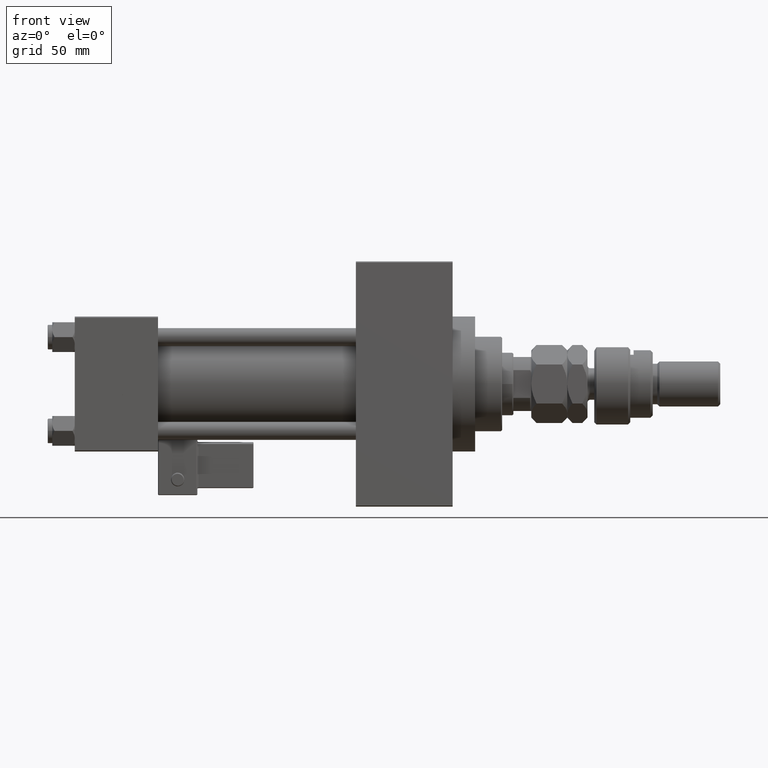
[diagram: clean part render]
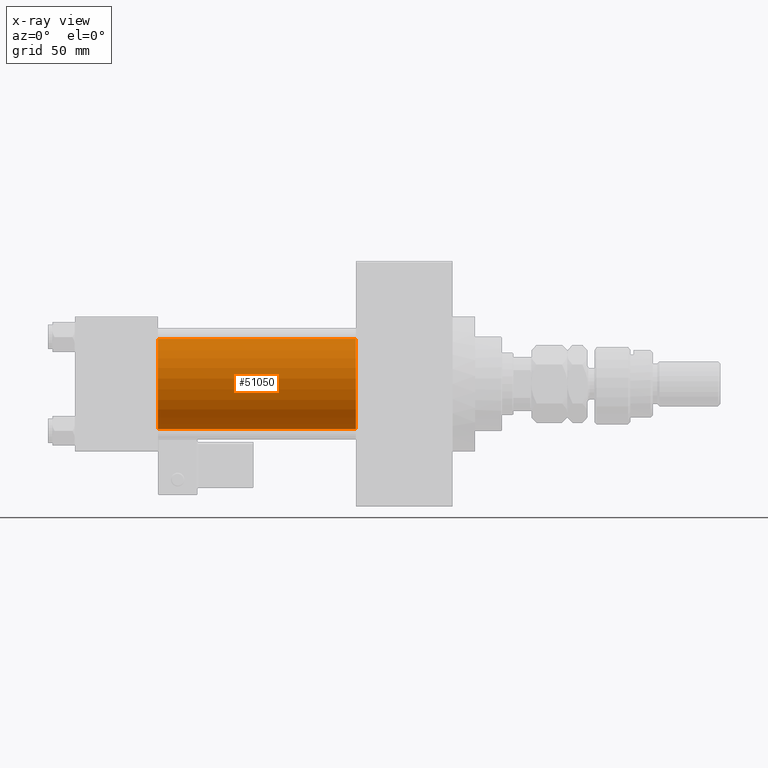
[diagram: x-ray — body ghosted, one internal face saturated and labeled with its STEP entity id]
A machine part, front view, then the same camera in x-ray: the body is ghosted and one INTERNAL B-rep face — a face not visible from any outside direction — is saturated and labeled: STEP entity #51050.
In plain terms, the highlighted cylindrical surface (partial cylindrical patch) has radius 20 mm, axis along (-1, -0, -0).
Its self-contained STEP definition (entity closure, byte-faithful):
#116 = VECTOR ( 'NONE', #9829, 1000.000000000000000 ) ;
#3916 = DIRECTION ( 'NONE',  ( 0.000000000000000000, 0.000000000000000000, -1.000000000000000000 ) ) ;
#4803 = CARTESIAN_POINT ( 'NONE',  ( 125.0000000000000000, -2.602085213965210642E-15, 0.000000000000000000 ) ) ;
#6578 = DIRECTION ( 'NONE',  ( 0.000000000000000000, 0.000000000000000000, -1.000000000000000000 ) ) ;
#9214 = EDGE_CURVE ( 'NONE', #22665, #41005, #18373, .T. ) ;
#9321 = VECTOR ( 'NONE', #18096, 1000.000000000000000 ) ;
#9829 = DIRECTION ( 'NONE',  ( -1.000000000000000000, -0.000000000000000000, -0.000000000000000000 ) ) ;
#10369 = AXIS2_PLACEMENT_3D ( 'NONE', #12200, #29048, #3916 ) ;
#10882 = ORIENTED_EDGE ( 'NONE', *, *, #26385, .F. ) ;
#11591 = VERTEX_POINT ( 'NONE', #46177 ) ;
#12200 = CARTESIAN_POINT ( 'NONE',  ( 125.0000000000000000, -2.602085213965210642E-15, 0.000000000000000000 ) ) ;
#13152 = CARTESIAN_POINT ( 'NONE',  ( 125.0000000000000000, -2.602085213965210642E-15, 20.00000000000000000 ) ) ;
#14852 = CARTESIAN_POINT ( 'NONE',  ( 37.00000000000000000, -2.602085213965210642E-15, 0.000000000000000000 ) ) ;
#16702 = FACE_OUTER_BOUND ( 'NONE', #27086, .T. ) ;
#18096 = DIRECTION ( 'NONE',  ( -1.000000000000000000, -0.000000000000000000, -0.000000000000000000 ) ) ;
#18373 = LINE ( 'NONE', #43715, #9321 ) ;
#19370 = ORIENTED_EDGE ( 'NONE', *, *, #26188, .F. ) ;
#21658 = DIRECTION ( 'NONE',  ( 0.000000000000000000, 0.000000000000000000, 1.000000000000000000 ) ) ;
#21803 = ORIENTED_EDGE ( 'NONE', *, *, #9214, .T. ) ;
#22665 = VERTEX_POINT ( 'NONE', #38690 ) ;
#23201 = CARTESIAN_POINT ( 'NONE',  ( 125.0000000000000000, -2.602085213965210642E-15, 20.00000000000000000 ) ) ;
#24048 = CARTESIAN_POINT ( 'NONE',  ( 37.00000000000000000, -1.527916156705042519E-16, -20.00000000000000000 ) ) ;
#25043 = VERTEX_POINT ( 'NONE', #23201 ) ;
#25310 = LINE ( 'NONE', #13152, #116 ) ;
#25528 = DIRECTION ( 'NONE',  ( -1.000000000000000000, -0.000000000000000000, -0.000000000000000000 ) ) ;
#26188 = EDGE_CURVE ( 'NONE', #11591, #41005, #39787, .T. ) ;
#26385 = EDGE_CURVE ( 'NONE', #25043, #11591, #25310, .T. ) ;
#26478 = DIRECTION ( 'NONE',  ( 1.000000000000000000, 0.000000000000000000, 0.000000000000000000 ) ) ;
#27086 = EDGE_LOOP ( 'NONE', ( #48186, #21803, #19370, #10882 ) ) ;
#29048 = DIRECTION ( 'NONE',  ( 1.000000000000000000, 0.000000000000000000, 0.000000000000000000 ) ) ;
#38690 = CARTESIAN_POINT ( 'NONE',  ( 125.0000000000000000, -1.527916156705042519E-16, -20.00000000000000000 ) ) ;
#39037 = AXIS2_PLACEMENT_3D ( 'NONE', #4803, #25528, #21658 ) ;
#39787 = CIRCLE ( 'NONE', #42439, 20.00000000000000000 ) ;
#40876 = EDGE_CURVE ( 'NONE', #25043, #22665, #41207, .T. ) ;
#41005 = VERTEX_POINT ( 'NONE', #24048 ) ;
#41207 = CIRCLE ( 'NONE', #10369, 20.00000000000000000 ) ;
#42439 = AXIS2_PLACEMENT_3D ( 'NONE', #14852, #26478, #6578 ) ;
#43715 = CARTESIAN_POINT ( 'NONE',  ( 125.0000000000000000, -1.527916156705042519E-16, -20.00000000000000000 ) ) ;
#46177 = CARTESIAN_POINT ( 'NONE',  ( 37.00000000000000000, -2.602085213965210642E-15, 20.00000000000000000 ) ) ;
#48186 = ORIENTED_EDGE ( 'NONE', *, *, #40876, .T. ) ;
#50368 = CYLINDRICAL_SURFACE ( 'NONE', #39037, 20.00000000000000000 ) ;
#51050 = ADVANCED_FACE ( 'NONE', ( #16702 ), #50368, .F. ) ;